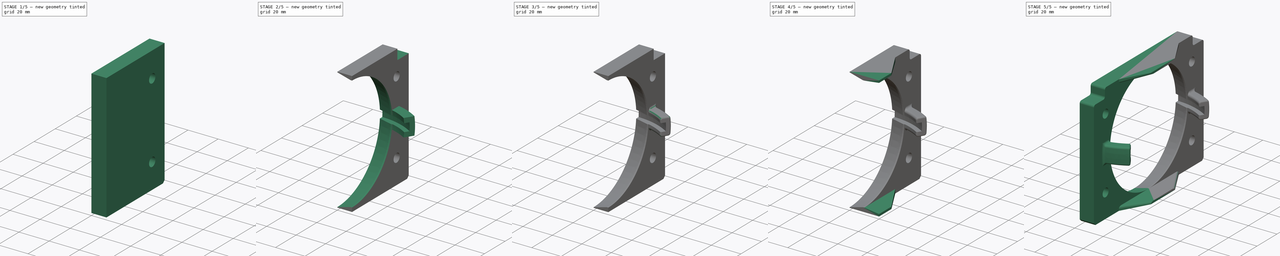
[diagram: build sequence overview — one tinted view per stage of 5, left to right]
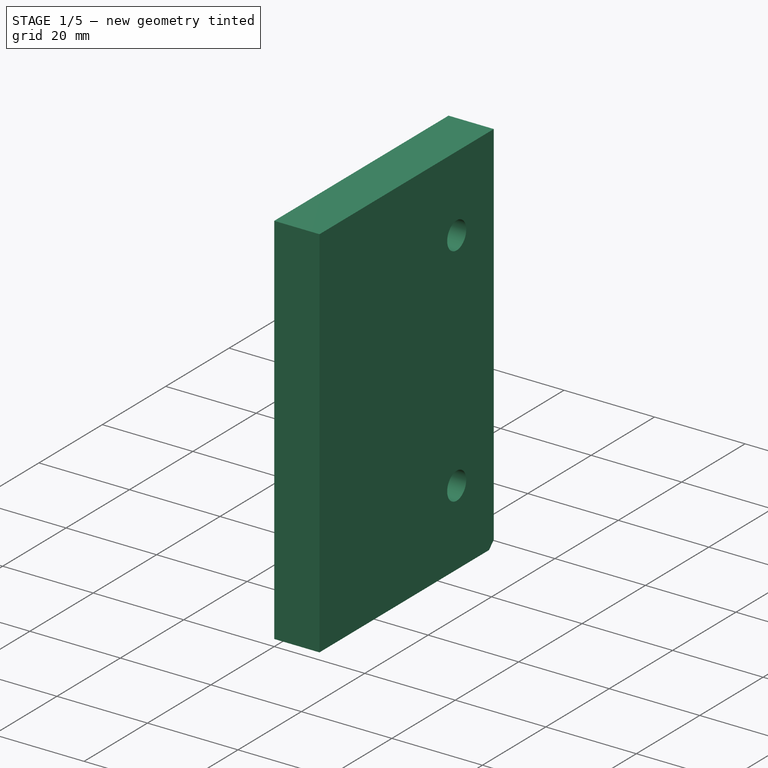
[diagram: stage 1 of 5 — iso view after this stage's code; geometry added in this stage tinted green]
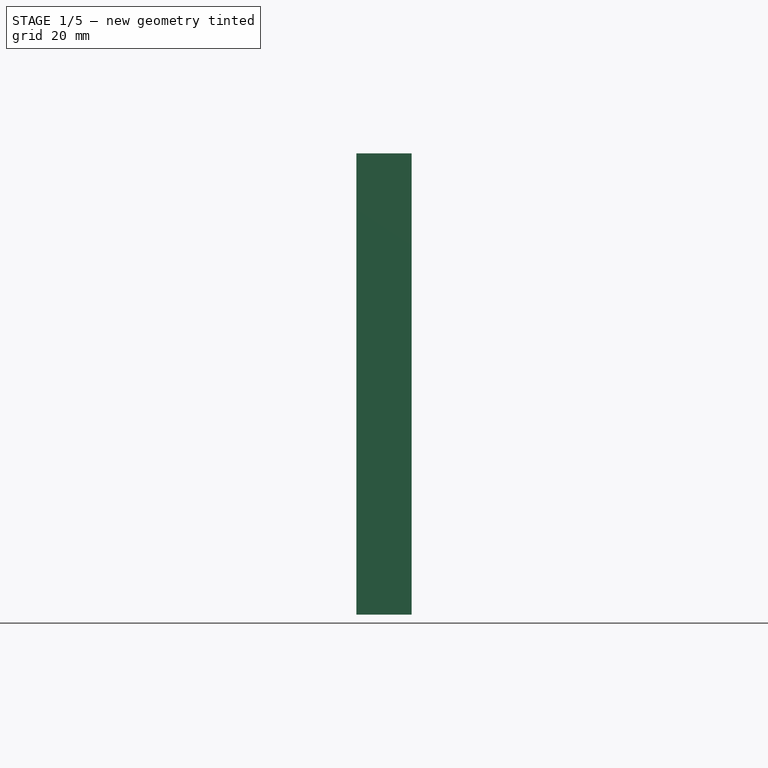
[diagram: stage 1 of 5 — front view after this stage's code; geometry added in this stage tinted green]
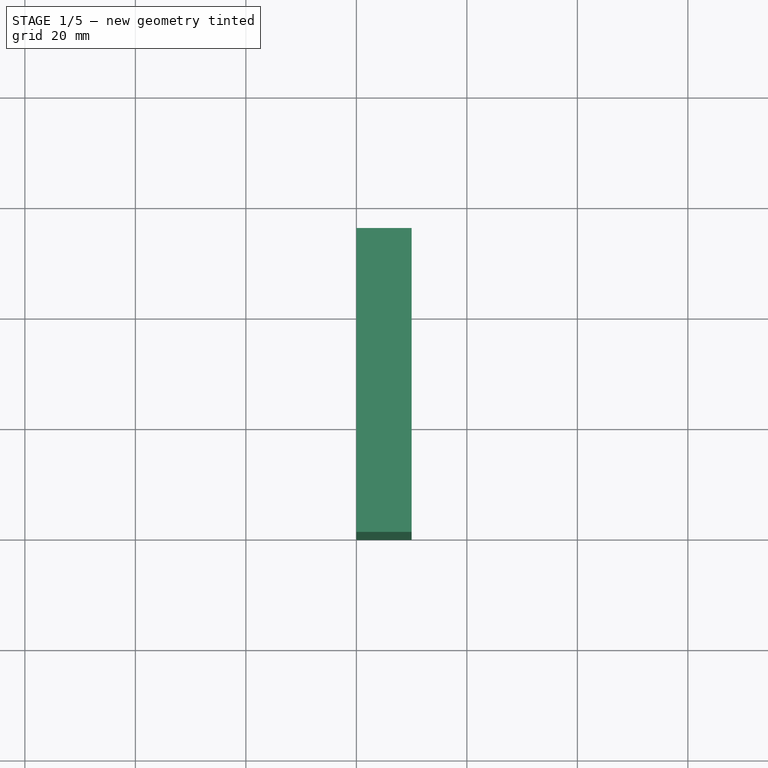
[diagram: stage 1 of 5 — top view after this stage's code; geometry added in this stage tinted green]
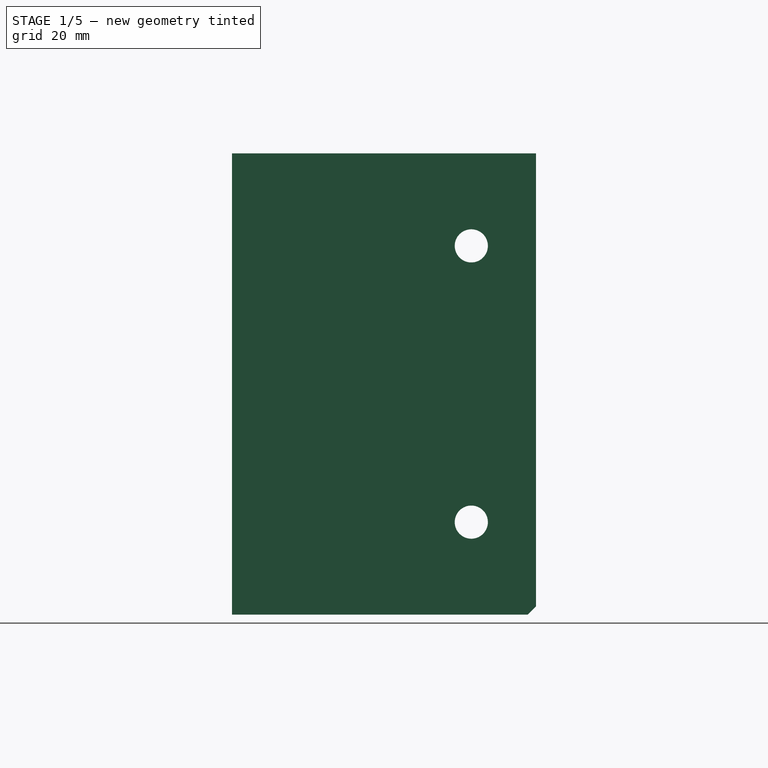
[diagram: stage 1 of 5 — right view after this stage's code; geometry added in this stage tinted green]
FCSTD DOCUMENT  (FreeCAD 1.0R39319 (Git))
Label: EyeScreen
License: All rights reserved
LicenseURL: https://en.wikipedia.org/wiki/All_rights_reserved
objects: Sketcher::SketchObject×10, PartDesign::Fillet×6, PartDesign::Pocket×4, PartDesign::Mirrored×3, PartDesign::Pad×2, PartDesign::Groove×2, PartDesign::CoordinateSystem×2, PartDesign::Chamfer×1, PartDesign::Revolution×1, PartDesign::Body×1, App::Part×1
note: 77 computed .brp shape members not serialized (recipe doc carries the construction recipe); baked Part::Feature solids carry a one-line shape summary decoded from their .brp

FEATURE [Sketcher::SketchObject] Sketch
  ArcFitTolerance = 1e-06
  AttachmentSupport = -> [YZ_Plane001]
  FullyConstrained = true
  MakeInternals = false
  MapMode = 5
  Placement = pos=(0,0,0) rot=(0.57735,0.57735,0.57735;2.0944rad)
  sketch-geometry (4):
    g0: LineSegment StartX=0 StartY=41.75 StartZ=0 EndX=0 EndY=-41.75 EndZ=0
    g1: LineSegment StartX=0 StartY=-41.75 StartZ=0 EndX=55 EndY=-41.75 EndZ=0
    g2: LineSegment StartX=55 StartY=-41.75 StartZ=0 EndX=55 EndY=41.75 EndZ=0
    g3: LineSegment StartX=55 StartY=41.75 StartZ=0 EndX=0 EndY=41.75 EndZ=0
  constraints (11):
    c: Coincident(g0,g1)
    c: Coincident(g1,g2)
    c: Coincident(g2,g3)
    c: Coincident(g3,g0)
    c: Vertical(g0)
    c: Horizontal(g1)
    c: Horizontal(g3)
    c: PointOnObject(g0,g-2)
    c: Distance(g1,g3) = 83.5
    c: Distance(g0,g2) = 55
    c: Symmetric(g2,g1,g-1)
FEATURE [PartDesign::Pad] Pad
  Direction = (1,0,0)
  Length = 10
  Length2 = 10
  Placement = pos=(0,0,0) rot=(1,1,1;2.0944rad)
  Profile = -> Sketch
  ReferenceAxis = -> Sketch [N_Axis]
  Refine = true
  Suppressed = false
  Type = 0
FEATURE [PartDesign::Chamfer] Chamfer
  Angle = 45
  Base = -> Pad [Edge5]
  BaseFeature = -> Pad
  ChamferType = 0
  FlipDirection = false
  Placement = pos=(0,0,0) rot=(1,1,1;2.0944rad)
  Refine = true
  Size = 1.5
  Size2 = 1
  SupportTransform = false
  Suppressed = false
  UseAllEdges = false
FEATURE [Sketcher::SketchObject] Sketch001
  ArcFitTolerance = 1e-06
  AttachmentSupport = -> [Chamfer]
  FullyConstrained = true
  MakeInternals = false
  MapMode = 5
  Placement = pos=(10,-2.2e-15,1.1e-15) rot=(0.57735,0.57735,0.57735;2.0944rad)
  sketch-geometry (2):
    g0: Circle CenterX=43.3013 CenterY=25 CenterZ=0 NormalX=0 NormalY=0 NormalZ=1 AngleXU=0 Radius=3
    g1: LineSegment [constr] StartX=43.3013 StartY=25 StartZ=0 EndX=0 EndY=0 EndZ=0
  constraints (5):
    c: Coincident(g1,g0)
    c: Coincident(g1,g-1)
    c: Angle(g-1,g1) = 0.523599
    c: Diameter(g0) = 6
    c: Distance(g0,g-1) = 50
FEATURE [PartDesign::Pocket] Pocket
  BaseFeature = -> Chamfer
  Direction = (-1,0,0)
  Length = 5
  Length2 = 5
  Placement = pos=(0,0,0) rot=(1,1,1;2.0944rad)
  Profile = -> Sketch001
  ReferenceAxis = -> Sketch001 [N_Axis]
  Refine = true
  Suppressed = false
  Type = 1
FEATURE [PartDesign::Mirrored] Mirrored
  BaseFeature = -> Pocket
  MirrorPlane = -> XY_Plane001
  Originals = -> [Pocket]
  Placement = pos=(0,0,0) rot=(1,1,1;2.0944rad)
  Refine = true
  Suppressed = false
  TransformMode = 0
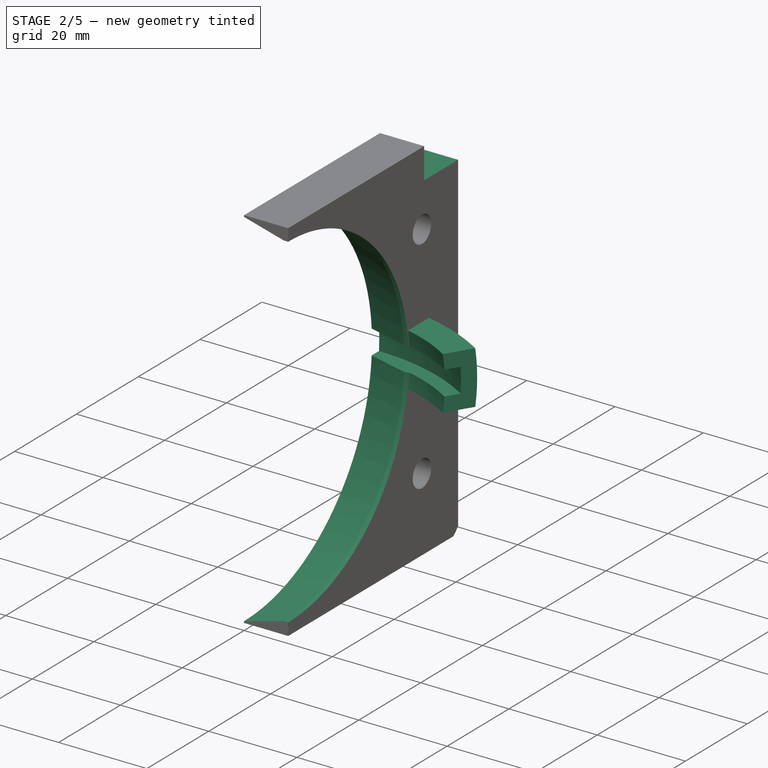
[diagram: stage 2 of 5 — iso view after this stage's code; geometry added in this stage tinted green]
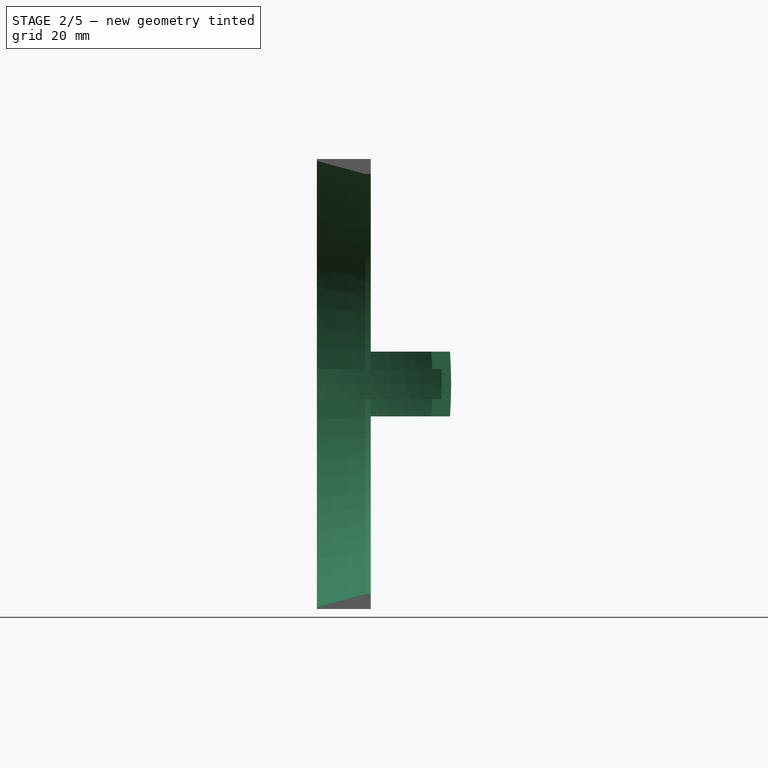
[diagram: stage 2 of 5 — front view after this stage's code; geometry added in this stage tinted green]
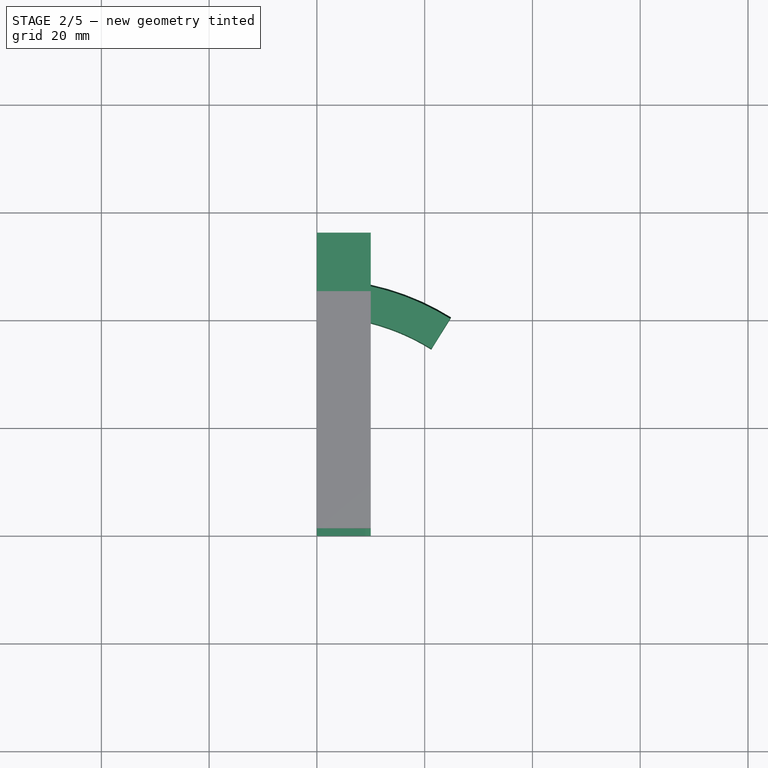
[diagram: stage 2 of 5 — top view after this stage's code; geometry added in this stage tinted green]
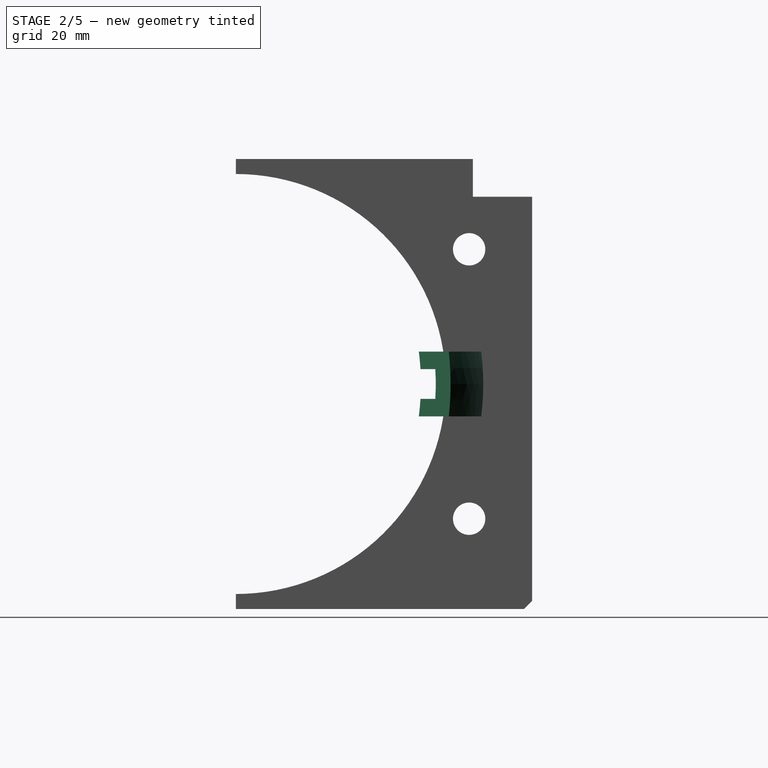
[diagram: stage 2 of 5 — right view after this stage's code; geometry added in this stage tinted green]
FEATURE [Sketcher::SketchObject] Sketch002
  ArcFitTolerance = 1e-06
  AttachmentSupport = -> [YZ_Plane001]
  FullyConstrained = true
  MakeInternals = false
  MapMode = 5
  Placement = pos=(0,0,0) rot=(0.57735,0.57735,0.57735;2.0944rad)
  sketch-geometry (4):
    g0: ArcOfCircle CenterX=0 CenterY=1.83e-14 CenterZ=0 NormalX=0 NormalY=0 NormalZ=1 AngleXU=0 Radius=47 StartAngle=6.15518 EndAngle=6.41119
    g1: LineSegment StartX=40.0531 StartY=6 StartZ=0 EndX=46.6154 EndY=6 EndZ=0
    g2: LineSegment StartX=40.0531 StartY=-6 StartZ=0 EndX=46.6154 EndY=-6 EndZ=0
    g3: ArcOfCircle CenterX=0 CenterY=1.83e-14 CenterZ=0 NormalX=0 NormalY=0 NormalZ=1 AngleXU=0 Radius=40.5 StartAngle=6.13449 EndAngle=6.43188
  constraints (12):
    c: Coincident(g1,g0)
    c: Coincident(g2,g0)
    c: Distance(g2,g1) = 12
    c: Horizontal(g1)
    c: Symmetric(g0,g0,g-1)
    c: Horizontal(g2)
    c: Coincident(g3,g1)
    c: Coincident(g3,g2)
    c: Coincident(g3,g0)
    c: Coincident(g0,g-1)
    c: Radius(g3) = 40.5
    c: Radius(g0) = 47
FEATURE [PartDesign::Revolution] Revolution
  Angle = 32
  Angle2 = 60
  Axis = (0,0,1)
  Base = (0,0,0)
  BaseFeature = -> Mirrored
  Placement = pos=(0,0,0) rot=(1,1,1;2.0944rad)
  Profile = -> Sketch002
  ReferenceAxis = -> Sketch002 [V_Axis]
  Refine = true
  Reversed = true
  Suppressed = false
  Type = 0
FEATURE [Sketcher::SketchObject] Sketch003
  ArcFitTolerance = 1e-06
  AttachmentSupport = -> [XZ_Plane001]
  ExternalGeometry = -> [Revolution]
  FullyConstrained = true
  MakeInternals = false
  MapMode = 5
  Placement = pos=(0,0,0) rot=(1,0,0;1.5708rad)
  sketch-geometry (5):
    g0: LineSegment StartX=0 StartY=0 StartZ=0 EndX=0 EndY=41.3865 EndZ=0
    g1: LineSegment StartX=0 StartY=41.3865 StartZ=0 EndX=9 EndY=38.975 EndZ=0
    g2: LineSegment StartX=9 StartY=38.975 StartZ=0 EndX=10 EndY=38.975 EndZ=0
    g3: LineSegment StartX=10 StartY=38.975 StartZ=0 EndX=10 EndY=0 EndZ=0
    g4: LineSegment StartX=10 StartY=0 StartZ=0 EndX=0 EndY=0 EndZ=0
  constraints (14):
    c: Coincident(g-1,g0)
    c: PointOnObject(g0,g-2)
    c: Coincident(g0,g1)
    c: Coincident(g1,g2)
    c: Coincident(g2,g3)
    c: Vertical(g3)
    c: Coincident(g3,g4)
    c: Coincident(g4,g0)
    c: Horizontal(g4)
    c: PointOnObject(g2,g-3)
    c: Horizontal(g2)
    c: Distance(g1,g0) = 9
    c: Angle(g1,g4) = 0.261799
    c: Distance(g4,g2) = 38.975
FEATURE [PartDesign::Groove] Groove
  Angle = 360
  Angle2 = 60
  Axis = (1,0,0)
  Base = (0,0,0)
  BaseFeature = -> Revolution
  Placement = pos=(0,0,0) rot=(1,1,1;2.0944rad)
  Profile = -> Sketch003
  ReferenceAxis = -> X_Axis001
  Refine = true
  Suppressed = false
  Type = 0
FEATURE [Sketcher::SketchObject] Sketch004
  ArcFitTolerance = 1e-06
  AttachmentSupport = -> [YZ_Plane001]
  FullyConstrained = true
  MakeInternals = false
  MapMode = 5
  Placement = pos=(0,0,0) rot=(0.57735,0.57735,0.57735;2.0944rad)
FEATURE [Sketcher::SketchObject] Sketch005
  ArcFitTolerance = 1e-06
  AttachmentSupport = -> [Groove]
  ExternalGeometry = -> [Groove]
  FullyConstrained = true
  MakeInternals = false
  MapMode = 5
  Placement = pos=(-1.21e-14,7.5e-15,0) rot=(0.787007,0.436245,0.436245;1.80806rad)
  sketch-geometry (4):
    g0: LineSegment StartX=0 StartY=2.75 StartZ=0 EndX=0 EndY=-2.75 EndZ=0
    g1: LineSegment StartX=0 StartY=-2.75 StartZ=0 EndX=43.6635 EndY=-2.75 EndZ=0
    g2: LineSegment StartX=0 StartY=2.75 StartZ=0 EndX=43.6635 EndY=2.75 EndZ=0
    g3: ArcOfCircle CenterX=0 CenterY=0 CenterZ=0 NormalX=0 NormalY=0 NormalZ=1 AngleXU=0 Radius=43.75 StartAngle=6.22029 EndAngle=6.34608
  constraints (12):
    c: PointOnObject(g0,g-2)
    c: PointOnObject(g0,g-2)
    c: Coincident(g0,g1)
    c: Horizontal(g1)
    c: Coincident(g3,g2)
    c: Coincident(g1,g3)
    c: Coincident(g-1,g3)
    c: Distance(g3,g-4) = 3.25
    c: Distance(g-5,g1) = 3.25
    c: Horizontal(g2)
    c: Distance(g-3,g2) = 3.25
    c: Coincident(g2,g0)
FEATURE [PartDesign::Groove] Groove001
  Angle = 360
  Angle2 = 60
  Axis = (-2e-16,-1e-16,1)
  Base = (-1.21e-14,7.5e-15,0)
  BaseFeature = -> Groove
  Placement = pos=(0,0,0) rot=(1,1,1;2.0944rad)
  Profile = -> Sketch005
  ReferenceAxis = -> Sketch005 [V_Axis]
  Refine = true
  Suppressed = false
  Type = 0
FEATURE [Sketcher::SketchObject] Sketch006
  ArcFitTolerance = 1e-06
  AttachmentSupport = -> [Groove001]
  ExternalGeometry = -> [Groove001]
  FullyConstrained = true
  MakeInternals = false
  MapMode = 5
  Placement = pos=(10,-1.11e-14,5.6e-15) rot=(0.57735,0.57735,0.57735;2.0944rad)
  sketch-geometry (4):
    g0: LineSegment StartX=44 StartY=42.75 StartZ=0 EndX=44 EndY=34.75 EndZ=0
    g1: LineSegment StartX=44 StartY=34.75 StartZ=0 EndX=56 EndY=34.75 EndZ=0
    g2: LineSegment StartX=56 StartY=34.75 StartZ=0 EndX=56 EndY=42.75 EndZ=0
    g3: LineSegment StartX=56 StartY=42.75 StartZ=0 EndX=44 EndY=42.75 EndZ=0
  constraints (12):
    c: Coincident(g0,g1)
    c: Coincident(g1,g2)
    c: Coincident(g2,g3)
    c: Coincident(g3,g0)
    c: Vertical(g0)
    c: Vertical(g2)
    c: Horizontal(g1)
    c: Horizontal(g3)
    c: Distance(g3,g-3) = 1
    c: Distance(g2,g-4) = 1
    c: Distance(g3,g1) = 8
    c: Distance(g2,g0) = 12
FEATURE [PartDesign::Pocket] Pocket001
  BaseFeature = -> Groove001
  Direction = (-1,1e-15,1e-16)
  Length = 5
  Length2 = 5
  Placement = pos=(0,0,0) rot=(1,1,1;2.0944rad)
  Profile = -> Sketch006
  ReferenceAxis = -> Sketch006 [N_Axis]
  Refine = true
  Suppressed = false
  Type = 1
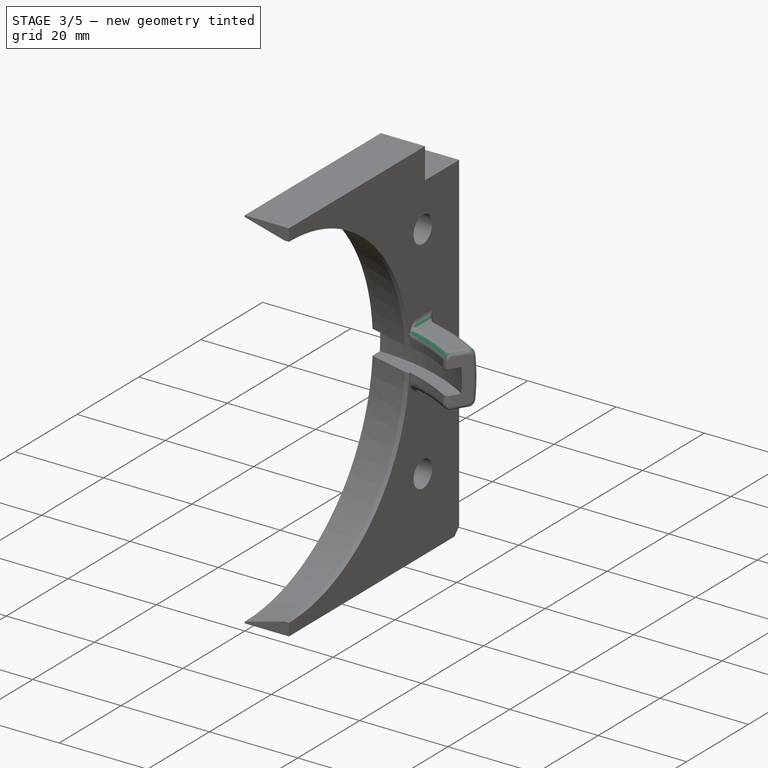
[diagram: stage 3 of 5 — iso view after this stage's code; geometry added in this stage tinted green]
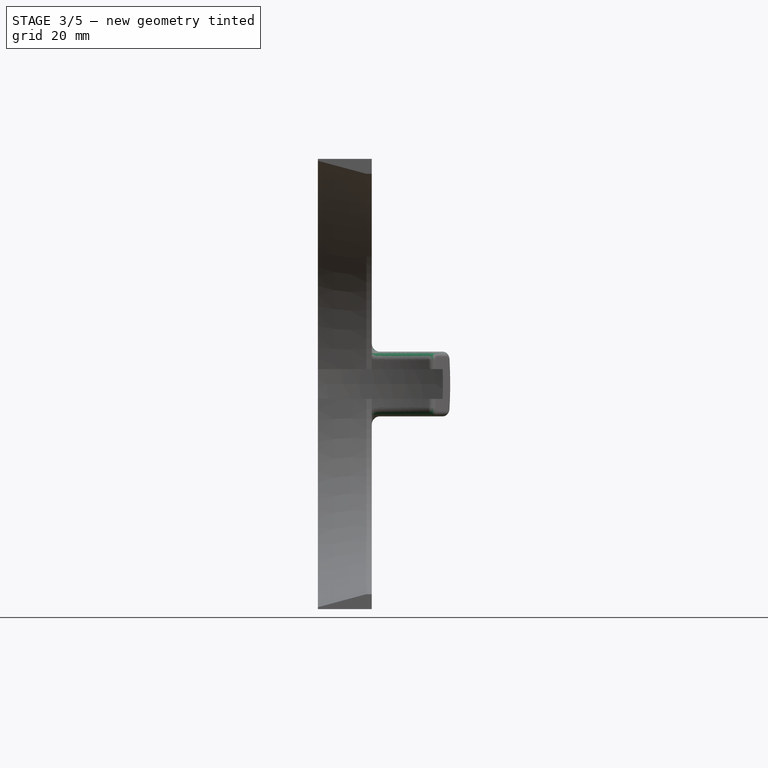
[diagram: stage 3 of 5 — front view after this stage's code; geometry added in this stage tinted green]
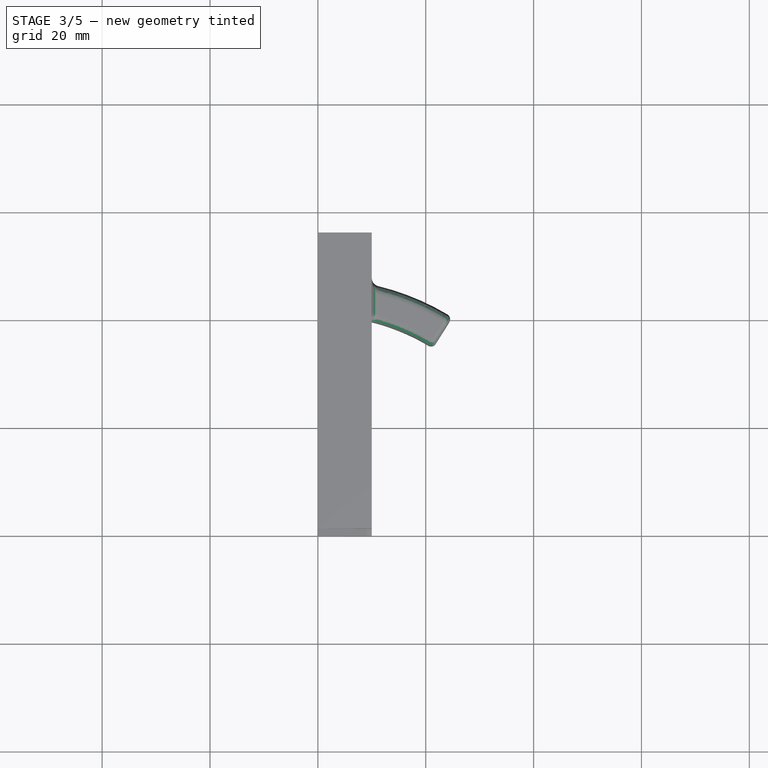
[diagram: stage 3 of 5 — top view after this stage's code; geometry added in this stage tinted green]
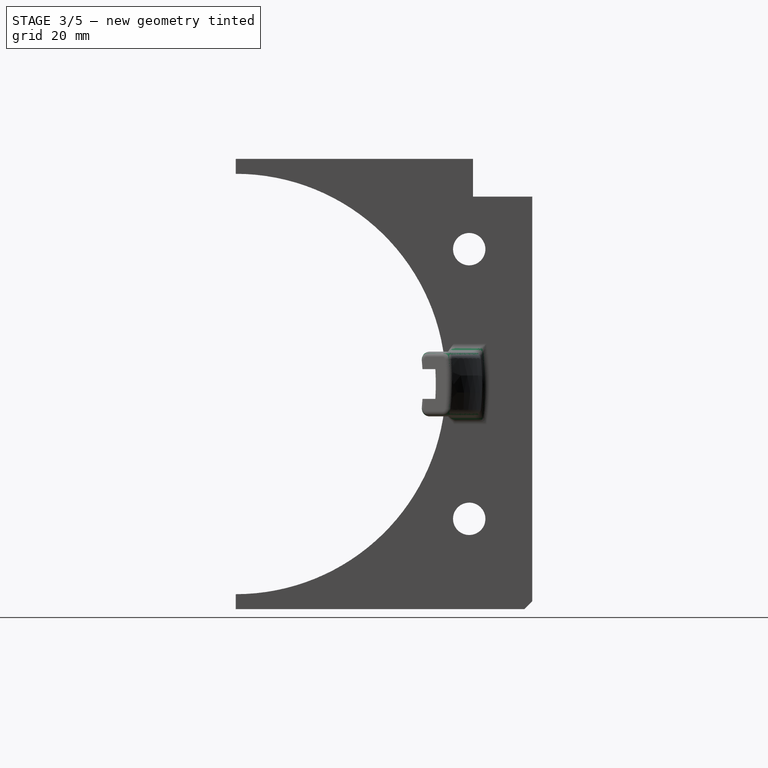
[diagram: stage 3 of 5 — right view after this stage's code; geometry added in this stage tinted green]
FEATURE [PartDesign::Fillet] Fillet
  Base = -> Pocket001 [Edge28,Edge27,Edge29]
  BaseFeature = -> Pocket001
  Placement = pos=(0,0,0) rot=(1,1,1;2.0944rad)
  Radius = 1.5
  Refine = true
  SupportTransform = false
  Suppressed = false
  UseAllEdges = false
FEATURE [PartDesign::Fillet] Fillet001
  Base = -> Fillet [Edge72,Edge77,Edge22,Edge44]
  BaseFeature = -> Fillet
  Placement = pos=(0,0,0) rot=(1,1,1;2.0944rad)
  Radius = 1.5
  Refine = true
  SupportTransform = false
  Suppressed = false
  UseAllEdges = false
FEATURE [PartDesign::Fillet] Fillet002
  Base = -> Fillet001 [Edge81]
  BaseFeature = -> Fillet001
  Placement = pos=(0,0,0) rot=(1,1,1;2.0944rad)
  Radius = 1
  Refine = true
  SupportTransform = false
  Suppressed = false
  UseAllEdges = false
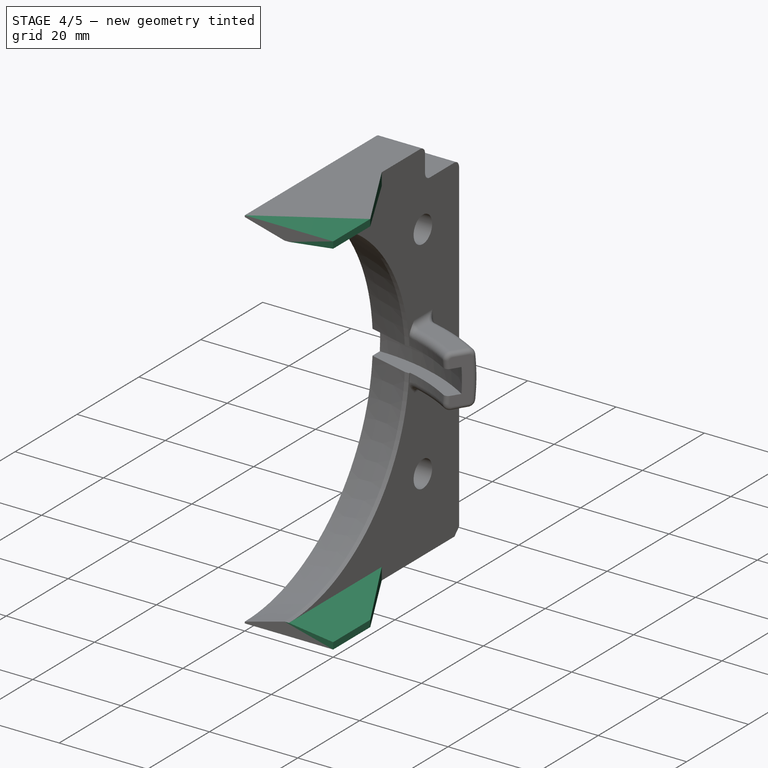
[diagram: stage 4 of 5 — iso view after this stage's code; geometry added in this stage tinted green]
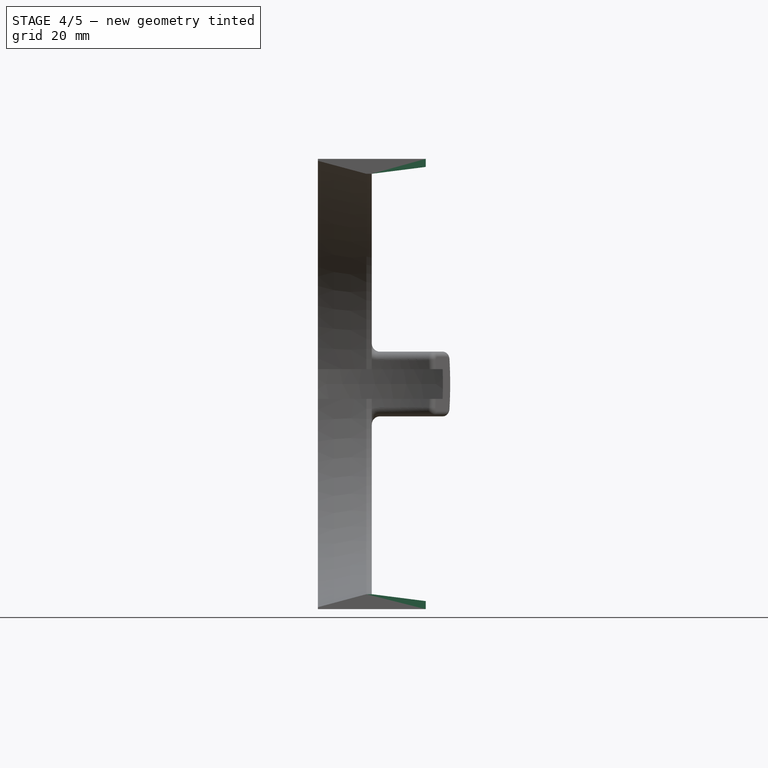
[diagram: stage 4 of 5 — front view after this stage's code; geometry added in this stage tinted green]
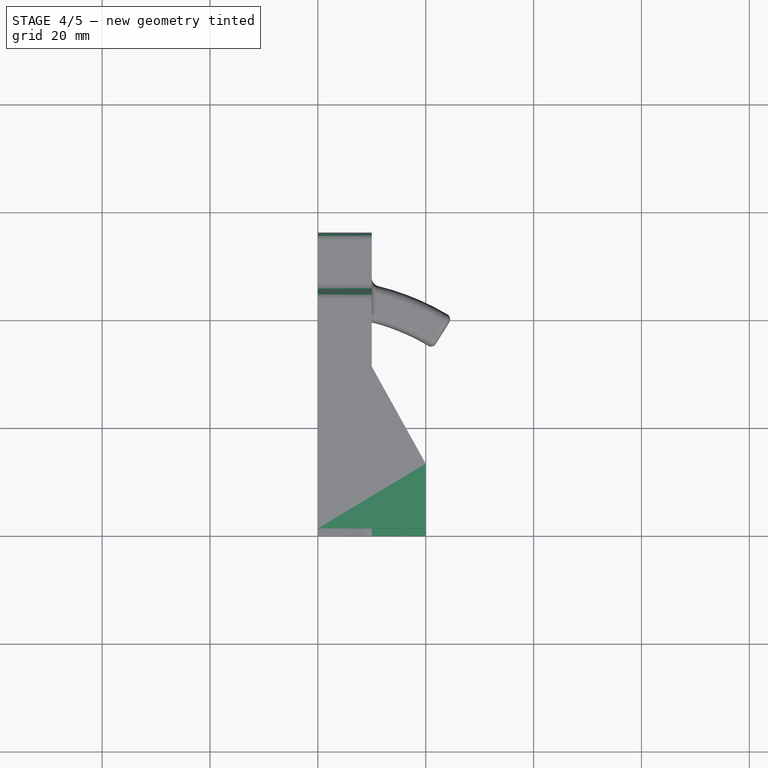
[diagram: stage 4 of 5 — top view after this stage's code; geometry added in this stage tinted green]
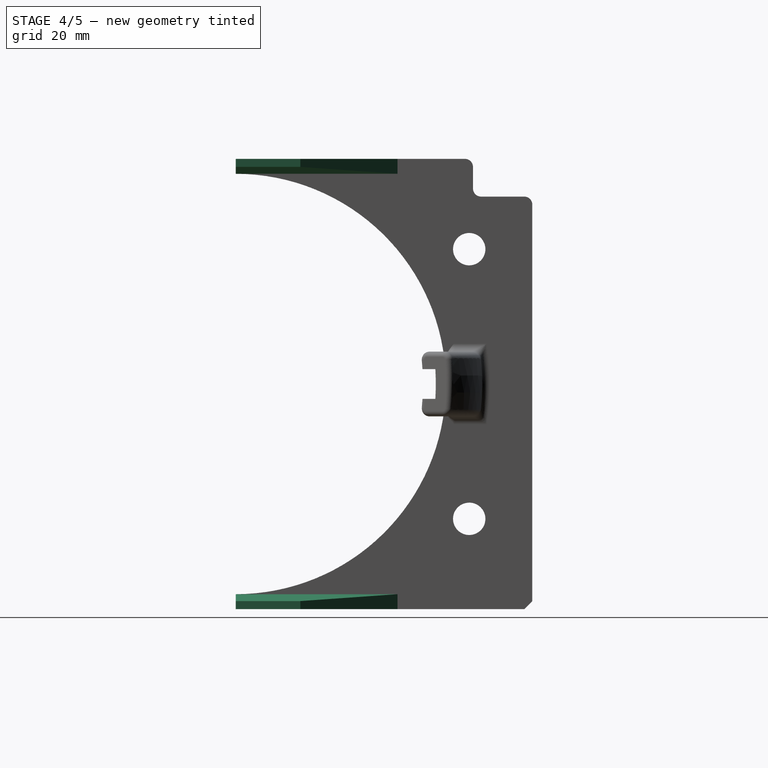
[diagram: stage 4 of 5 — right view after this stage's code; geometry added in this stage tinted green]
FEATURE [PartDesign::Fillet] Fillet003
  Base = -> Fillet002 [Edge87,Edge91,Edge94]
  BaseFeature = -> Fillet002
  Placement = pos=(0,0,0) rot=(1,1,1;2.0944rad)
  Radius = 1.5
  Refine = true
  SupportTransform = false
  Suppressed = false
  UseAllEdges = false
FEATURE [Sketcher::SketchObject] Sketch007
  ArcFitTolerance = 1e-06
  AttachmentSupport = -> [XZ_Plane001]
  ExternalGeometry = -> [Fillet003]
  FullyConstrained = true
  MakeInternals = false
  MapMode = 5
  Placement = pos=(0,0,0) rot=(1,0,0;1.5708rad)
  sketch-geometry (4):
    g0: LineSegment StartX=10 StartY=-41.75 StartZ=0 EndX=20 EndY=-41.75 EndZ=0
    g1: LineSegment StartX=20 StartY=-41.75 StartZ=0 EndX=20 EndY=-40.25 EndZ=0
    g2: LineSegment StartX=20 StartY=-40.25 StartZ=0 EndX=10 EndY=-38.975 EndZ=0
    g3: LineSegment StartX=10 StartY=-38.975 StartZ=0 EndX=10 EndY=-41.75 EndZ=0
  constraints (10):
    c: Coincident(g-4,g0)
    c: Horizontal(g0)
    c: Coincident(g0,g1)
    c: Coincident(g1,g2)
    c: Coincident(g2,g-3)
    c: Coincident(g2,g3)
    c: Coincident(g3,g0)
    c: Vertical(g1)
    c: DistanceY(g1,g1) = 1.5
    c: Distance(g1,g3) = 10
FEATURE [PartDesign::Pad] Pad001
  BaseFeature = -> Fillet003
  Direction = (0,-1,2e-16)
  Length = 30
  Length2 = 10
  Placement = pos=(0,0,0) rot=(1,1,1;2.0944rad)
  Profile = -> Sketch007
  ReferenceAxis = -> Sketch007 [N_Axis]
  Refine = true
  Reversed = true
  Suppressed = false
  Type = 0
FEATURE [Sketcher::SketchObject] Sketch008
  ArcFitTolerance = 1e-06
  AttachmentSupport = -> [Pad001]
  ExternalGeometry = -> [Pad001]
  FullyConstrained = true
  MakeInternals = false
  MapMode = 5
  Placement = pos=(7.86e-14,-9.1e-14,-41.75) rot=(0.707107,0.707107,0;3.14159rad)
  sketch-geometry (3):
    g0: LineSegment StartX=30 StartY=20 StartZ=0 EndX=30 EndY=10 EndZ=0
    g1: LineSegment StartX=30 StartY=10 StartZ=0 EndX=12 EndY=20 EndZ=0
    g2: LineSegment StartX=12 StartY=20 StartZ=0 EndX=30 EndY=20 EndZ=0
  constraints (7):
    c: Coincident(g0,g-4)
    c: Coincident(g0,g1)
    c: Coincident(g2,g1)
    c: Coincident(g2,g0)
    c: Horizontal(g2)
    c: Coincident(g0,g-4)
    c: DistanceX(g2,g2) = 18
FEATURE [PartDesign::Mirrored] Mirrored001
  BaseFeature = -> Pad001
  MirrorPlane = -> XY_Plane001
  Originals = -> [Pad001]
  Placement = pos=(0,0,0) rot=(1,1,1;2.0944rad)
  Refine = true
  Suppressed = false
  TransformMode = 0
FEATURE [PartDesign::Pocket] Pocket002
  BaseFeature = -> Mirrored001
  Direction = (-1.9e-15,2.2e-15,1)
  Length = 3
  Length2 = 5
  Placement = pos=(0,0,0) rot=(1,1,1;2.0944rad)
  Profile = -> Sketch008
  ReferenceAxis = -> Sketch008 [N_Axis]
  Refine = true
  Suppressed = false
  Type = 1
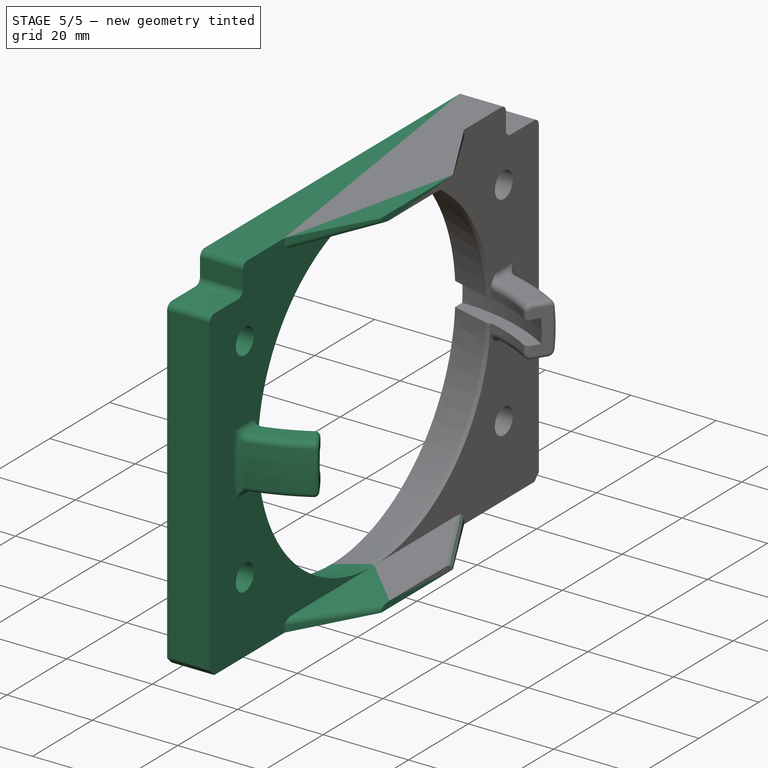
[diagram: stage 5 of 5 — iso view after this stage's code; geometry added in this stage tinted green]
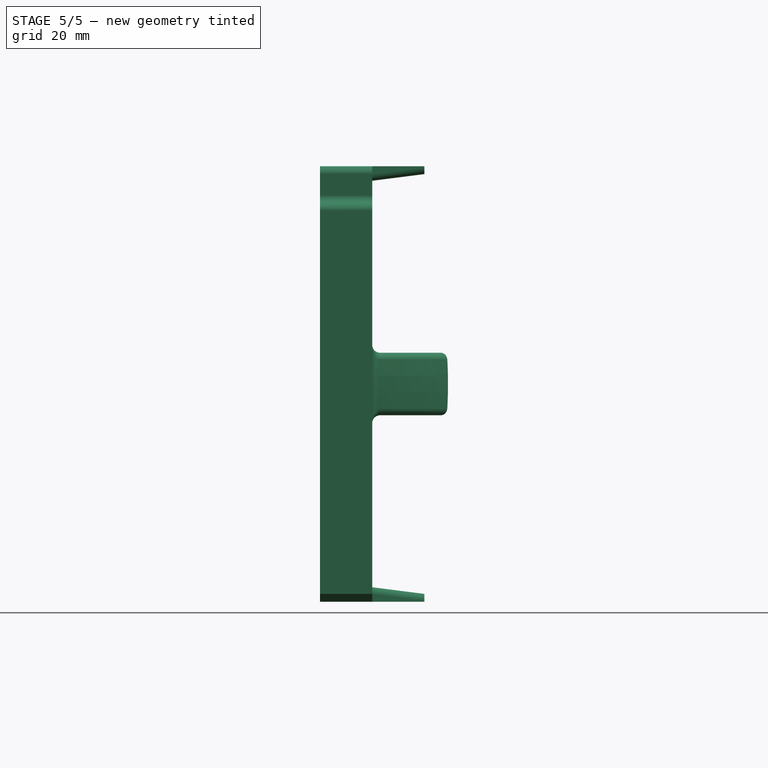
[diagram: stage 5 of 5 — front view after this stage's code; geometry added in this stage tinted green]
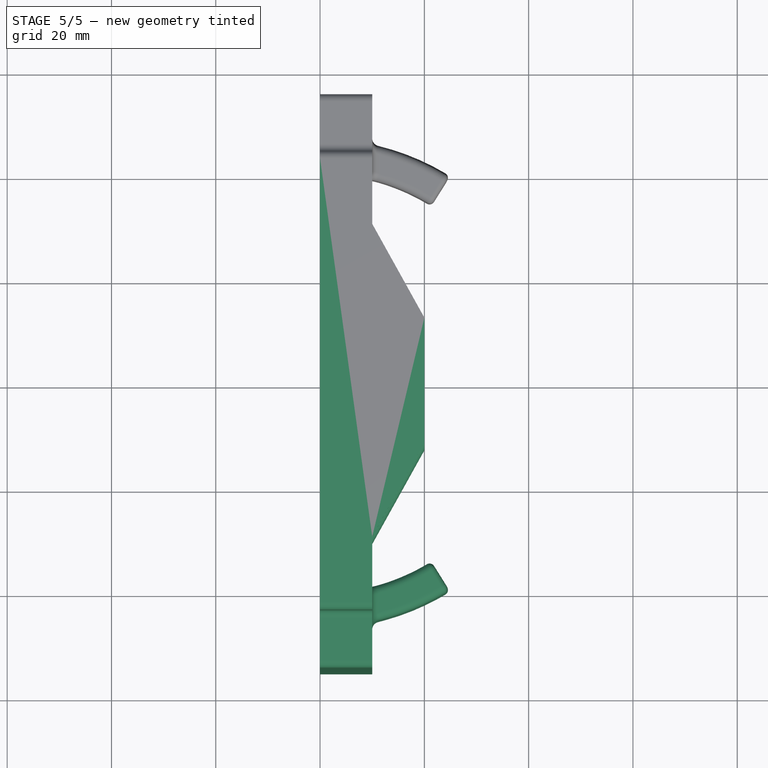
[diagram: stage 5 of 5 — top view after this stage's code; geometry added in this stage tinted green]
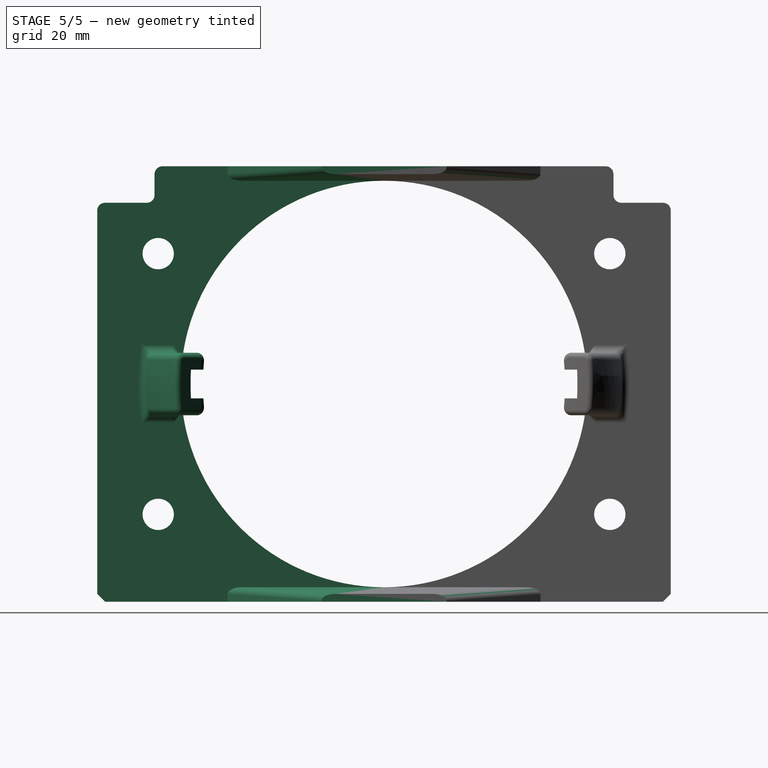
[diagram: stage 5 of 5 — right view after this stage's code; geometry added in this stage tinted green]
FEATURE [PartDesign::Fillet] Fillet004
  Base = -> Pocket002 [Edge15]
  BaseFeature = -> Pocket002
  Placement = pos=(0,0,0) rot=(1,1,1;2.0944rad)
  Radius = 1.5
  Refine = true
  SupportTransform = false
  Suppressed = false
  UseAllEdges = false
FEATURE [PartDesign::Fillet] Fillet005
  Base = -> Fillet004 [Edge96]
  BaseFeature = -> Fillet004
  Placement = pos=(0,0,0) rot=(1,1,1;2.0944rad)
  Radius = 1.5
  Refine = true
  SupportTransform = false
  Suppressed = false
  UseAllEdges = false
FEATURE [Sketcher::SketchObject] Sketch009
  ArcFitTolerance = 1e-06
  AttachmentSupport = -> [Fillet005]
  FullyConstrained = true
  MakeInternals = false
  MapMode = 5
  Placement = pos=(9.25e-14,-9.56e-14,-41.75) rot=(0.707107,0.707107,0;3.14159rad)
  sketch-geometry (1):
    g0: Circle CenterX=50 CenterY=5 CenterZ=0 NormalX=0 NormalY=0 NormalZ=1 AngleXU=0 Radius=2.35
  constraints (3):
    c: Distance(g0,g-1) = 5
    c: DistanceX(g-1,g0) = 50
    c: Diameter(g0) = 4.7
FEATURE [PartDesign::Pocket] Pocket003
  BaseFeature = -> Fillet005
  Direction = (-2.2e-15,2.3e-15,1)
  Length = 15
  Length2 = 5
  Placement = pos=(0,0,0) rot=(1,1,1;2.0944rad)
  Profile = -> Sketch009
  ReferenceAxis = -> Sketch009 [N_Axis]
  Refine = true
  Suppressed = false
  Type = 0
FEATURE [PartDesign::Mirrored] Mirrored002
  BaseFeature = -> Pocket003
  MirrorPlane = -> XZ_Plane001
  Placement = pos=(0,0,0) rot=(1,1,1;2.0944rad)
  Refine = true
  Suppressed = false
  TransformMode = 1
FEATURE [PartDesign::Body] Body  label="EyeScreen001"
  AllowCompound = false
  Group = -> [Sketch,Pad,Chamfer,Sketch001,Pocket,Mirrored,Sketch002,Revolution,Sketch003,Groove,Sketch004,Sketch005,Groove001,Sketch006,Pocket001,Fillet,Fillet001,Fillet002,Fillet003,Sketch007,Pad001,Sketch008,Mirrored001,Pocket002,Fillet004,Fillet005,Sketch009,Pocket003,Mirrored002]
  Origin = -> Origin001
  Tip = -> Mirrored002
FEATURE [PartDesign::CoordinateSystem] center
  AttacherType = Attacher::AttachEngine3D
FEATURE [PartDesign::CoordinateSystem] stack_reference_point
  AttacherType = Attacher::AttachEngine3D
  AttachmentSupport = -> [Mirrored002]
  MapMode = 11
  Placement = pos=(5,-50,-41.75) rot=(0,0,1;0rad)
FEATURE [App::Part] Part  label="EyeScreen"
  Group = -> [Body,center,stack_reference_point]
  Origin = -> Origin
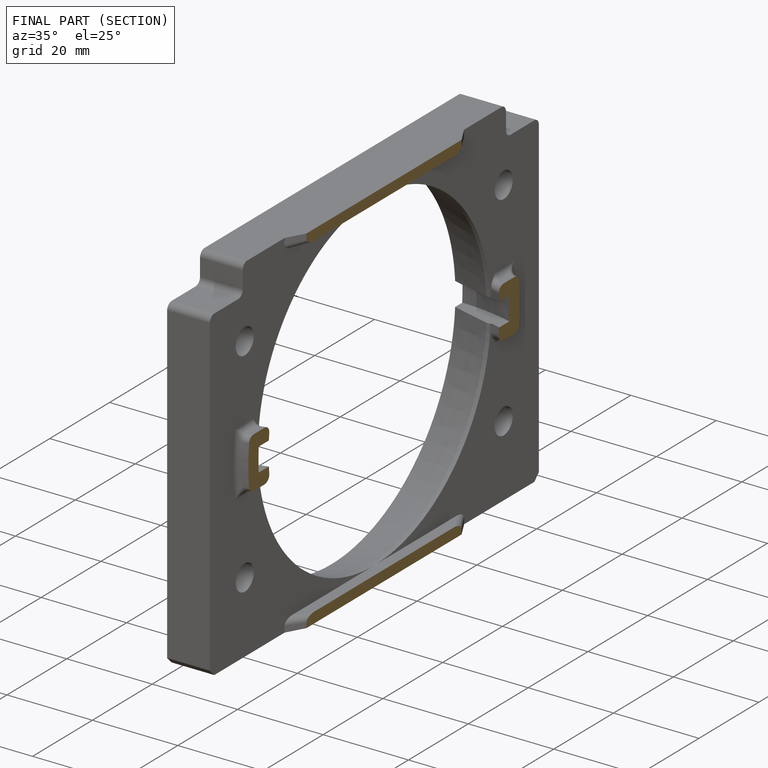
[diagram: finished part — half-section view (interior)]
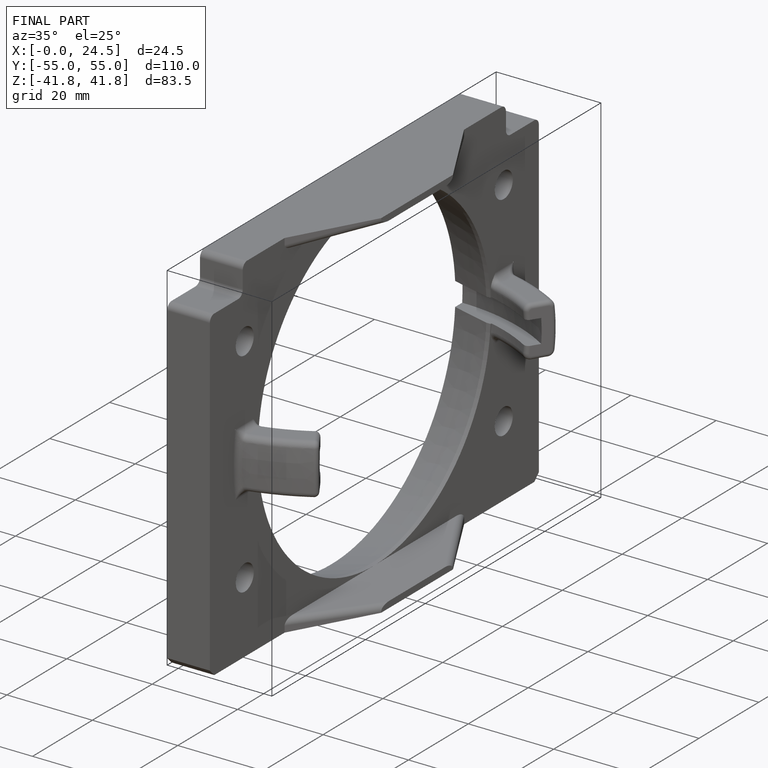
[diagram: finished part — iso view with bounding-box wireframe]
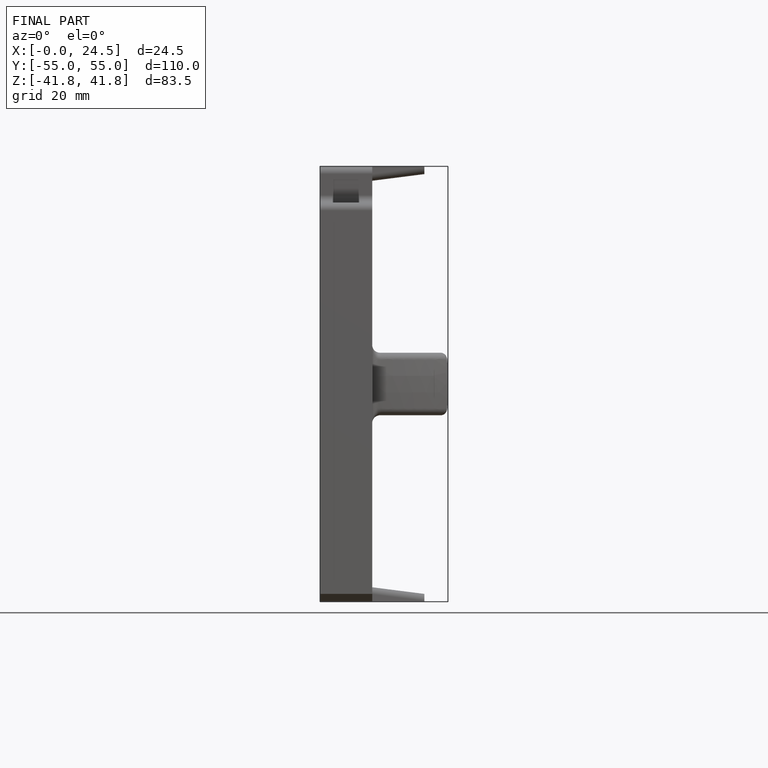
[diagram: finished part — front view with bounding-box wireframe]
